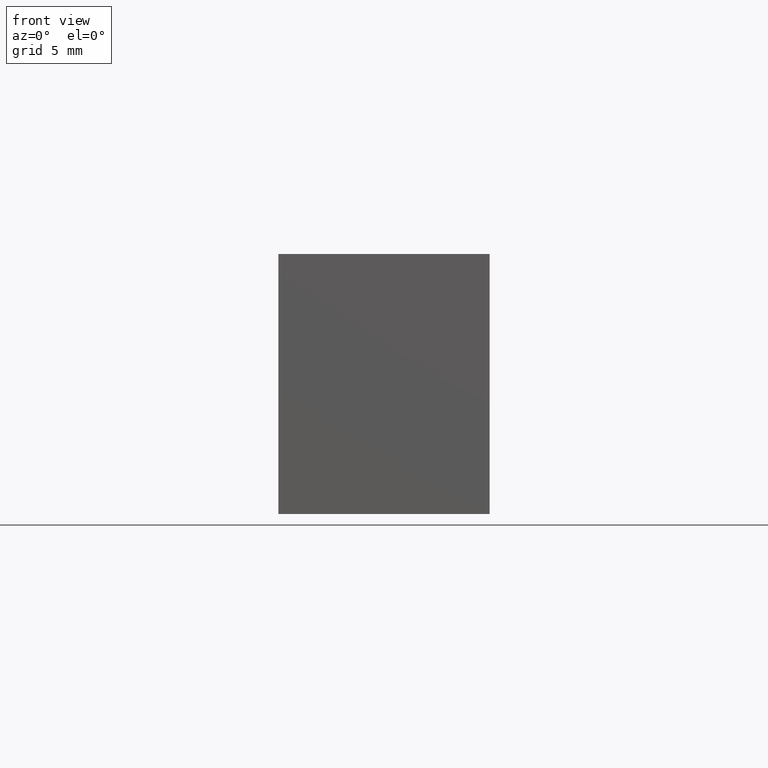
[diagram: clean part render]
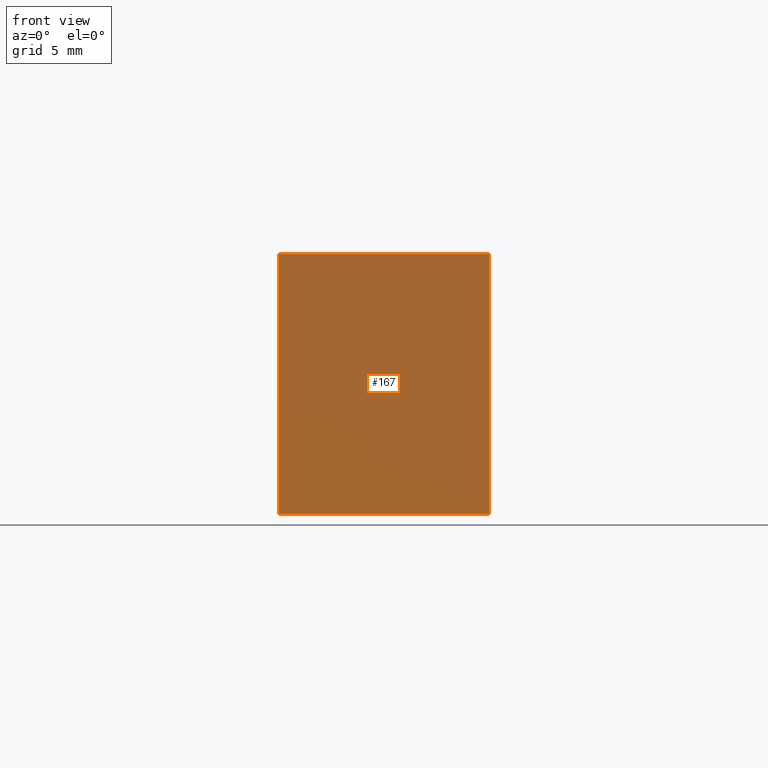
[diagram: same view with one face highlighted and labeled with its STEP entity id]
A machine part, front view. The second image highlights one B-rep face of the part: STEP entity #167.
In plain terms, the highlighted planar face has unit normal (0, -1, 0).
Its self-contained STEP definition (entity closure, byte-faithful):
#24=FACE_OUTER_BOUND('',#33,.T.);
#33=EDGE_LOOP('',(#141,#142,#143,#144));
#37=LINE('',#250,#56);
#45=LINE('',#267,#64);
#54=LINE('',#287,#73);
#55=LINE('',#289,#74);
#56=VECTOR('',#207,10.);
#64=VECTOR('',#219,10.);
#73=VECTOR('',#240,10.);
#74=VECTOR('',#243,10.);
#75=VERTEX_POINT('',#248);
#76=VERTEX_POINT('',#249);
#82=VERTEX_POINT('',#263);
#88=VERTEX_POINT('',#285);
#89=EDGE_CURVE('',#75,#76,#37,.T.);
#98=EDGE_CURVE('',#82,#75,#45,.T.);
#108=EDGE_CURVE('',#88,#76,#54,.T.);
#109=EDGE_CURVE('',#88,#82,#55,.T.);
#141=ORIENTED_EDGE('',*,*,#109,.T.);
#142=ORIENTED_EDGE('',*,*,#98,.T.);
#143=ORIENTED_EDGE('',*,*,#89,.T.);
#144=ORIENTED_EDGE('',*,*,#108,.F.);
#158=PLANE('',#201);
#167=ADVANCED_FACE('',(#24),#158,.T.);
#201=AXIS2_PLACEMENT_3D('',#288,#241,#242);
#207=DIRECTION('',(1.,-3.00545187904787E-15,0.));
#219=DIRECTION('',(0.,0.,-1.));
#240=DIRECTION('',(0.,0.,-1.));
#241=DIRECTION('center_axis',(3.85414216364287E-16,-1.,0.));
#242=DIRECTION('ref_axis',(0.,0.,-1.));
#243=DIRECTION('',(-1.,-3.85414216364287E-16,0.));
#248=CARTESIAN_POINT('',(-6.5,-13.6599409950749,-8.));
#249=CARTESIAN_POINT('',(6.5,-13.6599409950749,-8.));
#250=CARTESIAN_POINT('',(6.5,-13.6599409950749,-8.));
#263=CARTESIAN_POINT('',(-6.5,-13.6599409950749,8.));
#267=CARTESIAN_POINT('',(-6.5,-13.6599409950749,0.));
#285=CARTESIAN_POINT('',(6.5,-13.6599409950749,8.));
#287=CARTESIAN_POINT('',(6.5,-13.6599409950749,0.));
#288=CARTESIAN_POINT('Origin',(5.02238788800455,-13.6599409950749,0.));
#289=CARTESIAN_POINT('',(5.02238788800455,-13.6599409950749,8.));